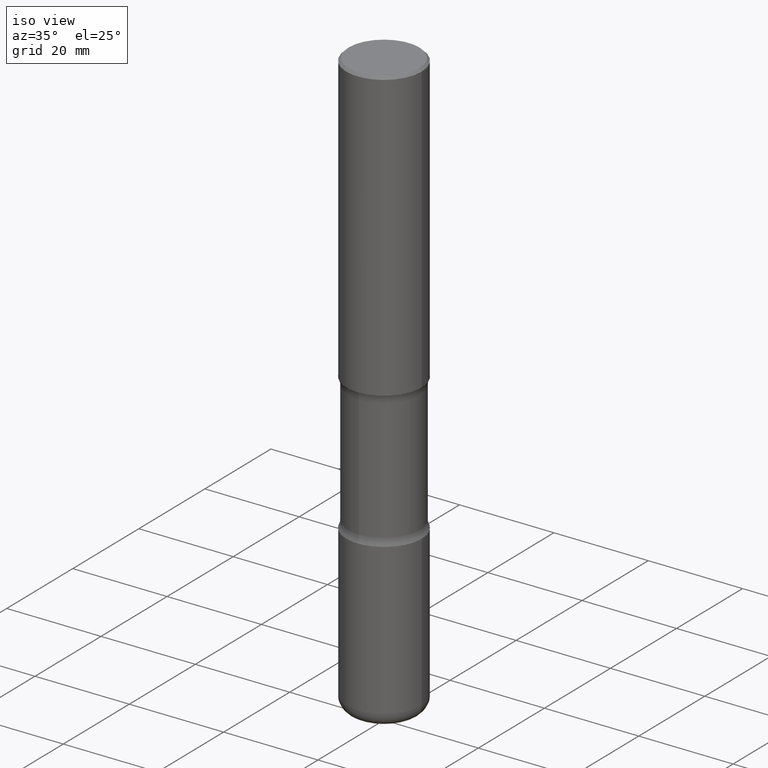
[diagram: clean part render]
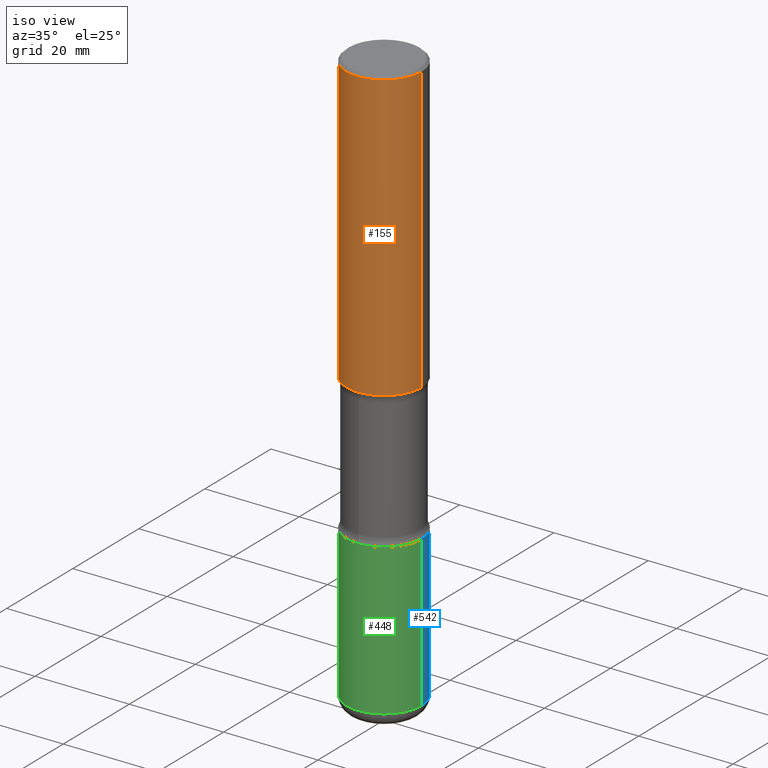
[diagram: same view with three faces highlighted in distinct colors, each labeled with its STEP entity id]
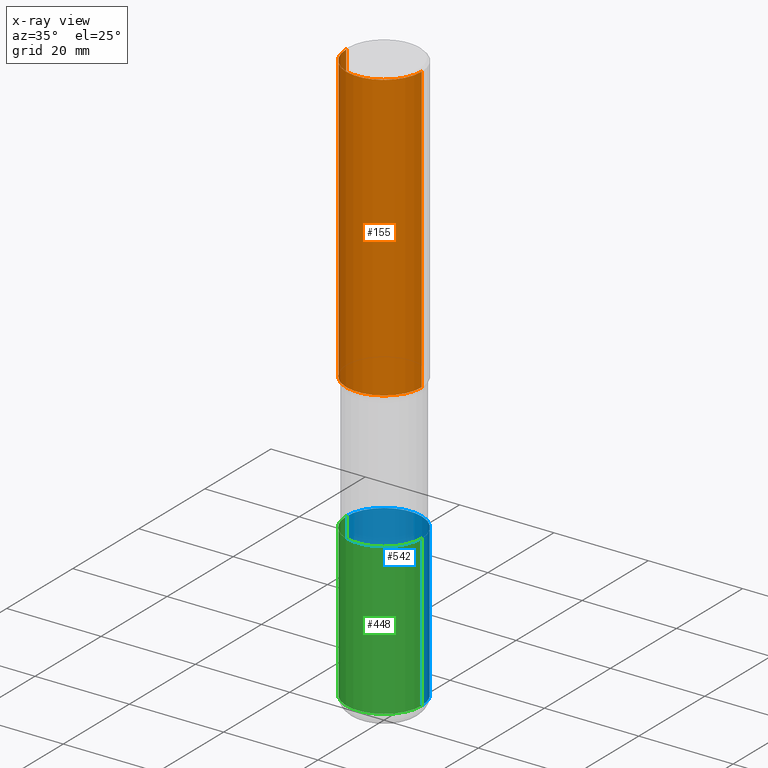
[diagram: x-ray of the same camera — body ghosted, the three highlighted faces saturated]
A machine part, iso view with three faces highlighted in distinct colors.
The next image is the same camera in x-ray (body ghosted, the three faces saturated) — at least one of them is partly hidden behind the body in this view.
Their STEP definitions:

[orange] entity #155 — the highlighted cylindrical surface (partial cylindrical patch) has radius 7.9997 mm, axis along (-0, 0, 1).
#7 = AXIS2_PLACEMENT_3D ( 'NONE', #23, #197, #163 ) ;
#19 = CARTESIAN_POINT ( 'NONE',  ( -0.3149499999999998967, 2.129454468560425784E-15, -0.02000000000000006981 ) ) ;
#23 = CARTESIAN_POINT ( 'NONE',  ( 5.873037884934225470E-29, -8.385141583365698841E-15, -2.401600000000000623 ) ) ;
#43 = VERTEX_POINT ( 'NONE', #19 ) ;
#45 = CIRCLE ( 'NONE', #7, 0.3149500000000001743 ) ;
#48 = DIRECTION ( 'NONE',  ( 1.000000000000000000, -6.982962677686265922E-15, 0.000000000000000000 ) ) ;
#80 = DIRECTION ( 'NONE',  ( -2.445468806185136597E-29, 3.491481338843145583E-15, 1.000000000000000000 ) ) ;
#87 = VERTEX_POINT ( 'NONE', #451 ) ;
#147 = VERTEX_POINT ( 'NONE', #472 ) ;
#149 = EDGE_CURVE ( 'NONE', #87, #147, #45, .T. ) ;
#155 = ADVANCED_FACE ( 'NONE', ( #378 ), #375, .T. ) ;
#163 = DIRECTION ( 'NONE',  ( 1.000000000000000000, -6.982962677686265922E-15, 0.000000000000000000 ) ) ;
#170 = DIRECTION ( 'NONE',  ( -2.445468806185136597E-29, 3.491481338843145583E-15, 1.000000000000000000 ) ) ;
#184 = EDGE_CURVE ( 'NONE', #87, #43, #337, .T. ) ;
#197 = DIRECTION ( 'NONE',  ( -2.445468806185136597E-29, 3.491481338843145583E-15, 1.000000000000000000 ) ) ;
#255 = ORIENTED_EDGE ( 'NONE', *, *, #269, .T. ) ;
#260 = CARTESIAN_POINT ( 'NONE',  ( 0.3149500000000000077, -2.199284095337289871E-15, 1.535751875536930130E-29 ) ) ;
#269 = EDGE_CURVE ( 'NONE', #147, #453, #304, .T. ) ;
#277 = ORIENTED_EDGE ( 'NONE', *, *, #184, .F. ) ;
#304 = LINE ( 'NONE', #260, #493 ) ;
#337 = LINE ( 'NONE', #507, #345 ) ;
#345 = VECTOR ( 'NONE', #422, 39.37007874015748143 ) ;
#375 = CYLINDRICAL_SURFACE ( 'NONE', #438, 0.3149500000000000077 ) ;
#378 = FACE_OUTER_BOUND ( 'NONE', #458, .T. ) ;
#383 = CARTESIAN_POINT ( 'NONE',  ( 0.000000000000000000, 0.000000000000000000, 0.000000000000000000 ) ) ;
#396 = EDGE_CURVE ( 'NONE', #43, #453, #500, .T. ) ;
#413 = ORIENTED_EDGE ( 'NONE', *, *, #396, .F. ) ;
#422 = DIRECTION ( 'NONE',  ( -2.445468806185136877E-29, 3.491481338843145188E-15, 1.000000000000000000 ) ) ;
#438 = AXIS2_PLACEMENT_3D ( 'NONE', #383, #80, #543 ) ;
#451 = CARTESIAN_POINT ( 'NONE',  ( -0.3149500000000001743, -1.989631258794842718E-15, -2.401600000000000623 ) ) ;
#453 = VERTEX_POINT ( 'NONE', #537 ) ;
#455 = AXIS2_PLACEMENT_3D ( 'NONE', #490, #170, #48 ) ;
#458 = EDGE_LOOP ( 'NONE', ( #277, #514, #255, #413 ) ) ;
#472 = CARTESIAN_POINT ( 'NONE',  ( 0.3149500000000001743, -1.058442567870299029E-14, -2.401600000000000623 ) ) ;
#490 = CARTESIAN_POINT ( 'NONE',  ( 4.890937612370289799E-31, -6.982962677686315028E-17, -0.02000000000000006981 ) ) ;
#493 = VECTOR ( 'NONE', #527, 39.37007874015748143 ) ;
#500 = CIRCLE ( 'NONE', #455, 0.3149499999999998967 ) ;
#507 = CARTESIAN_POINT ( 'NONE',  ( -0.3149500000000000077, 2.237854346276435590E-15, -1.549218606675782676E-29 ) ) ;
#514 = ORIENTED_EDGE ( 'NONE', *, *, #149, .T. ) ;
#527 = DIRECTION ( 'NONE',  ( -2.445468806185136877E-29, 3.491481338843145188E-15, 1.000000000000000000 ) ) ;
#537 = CARTESIAN_POINT ( 'NONE',  ( 0.3149499999999998967, -2.230543471175006266E-15, -0.02000000000000006981 ) ) ;
#543 = DIRECTION ( 'NONE',  ( 1.000000000000000000, -6.982962677686266711E-15, 4.876176775795936353E-29 ) ) ;

[blue] entity #542 — the highlighted cylindrical surface (partial cylindrical patch) has radius 7.9997 mm, axis along (-0, 0, 1).
#27 = VERTEX_POINT ( 'NONE', #153 ) ;
#28 = DIRECTION ( 'NONE',  ( -2.445468806185136877E-29, 3.491481338843145188E-15, 1.000000000000000000 ) ) ;
#35 = AXIS2_PLACEMENT_3D ( 'NONE', #57, #410, #189 ) ;
#47 = DIRECTION ( 'NONE',  ( 1.000000000000000000, -6.982962677686263555E-15, 0.000000000000000000 ) ) ;
#50 = LINE ( 'NONE', #216, #193 ) ;
#57 = CARTESIAN_POINT ( 'NONE',  ( 1.174607576986844421E-28, -1.677028316673139137E-14, -4.803199999999998582 ) ) ;
#61 = DIRECTION ( 'NONE',  ( -2.445468806185136597E-29, 3.491481338843145583E-15, 1.000000000000000000 ) ) ;
#72 = DIRECTION ( 'NONE',  ( 1.000000000000000000, -6.982962677686267499E-15, 4.876176775795936353E-29 ) ) ;
#77 = CARTESIAN_POINT ( 'NONE',  ( 0.3149500000000003963, -2.199284095337292632E-15, 1.535751875536932092E-29 ) ) ;
#79 = ORIENTED_EDGE ( 'NONE', *, *, #371, .F. ) ;
#100 = CARTESIAN_POINT ( 'NONE',  ( -0.3149500000000002853, -1.233297015105071824E-14, -3.543300000000000782 ) ) ;
#105 = FACE_OUTER_BOUND ( 'NONE', #300, .T. ) ;
#111 = VERTEX_POINT ( 'NONE', #381 ) ;
#114 = LINE ( 'NONE', #77, #539 ) ;
#137 = DIRECTION ( 'NONE',  ( -2.445468806185136877E-29, 3.491481338843145188E-15, 1.000000000000000000 ) ) ;
#153 = CARTESIAN_POINT ( 'NONE',  ( 0.3149500000000002853, -1.457064992326021168E-14, -3.543300000000000782 ) ) ;
#189 = DIRECTION ( 'NONE',  ( 1.000000000000000000, -6.982962677686265133E-15, 0.000000000000000000 ) ) ;
#193 = VECTOR ( 'NONE', #137, 39.37007874015748143 ) ;
#212 = ORIENTED_EDGE ( 'NONE', *, *, #237, .T. ) ;
#216 = CARTESIAN_POINT ( 'NONE',  ( -0.3149500000000003963, 2.237854346276438351E-15, -1.549218606675784638E-29 ) ) ;
#237 = EDGE_CURVE ( 'NONE', #111, #463, #50, .T. ) ;
#257 = CARTESIAN_POINT ( 'NONE',  ( 8.665029620955796311E-29, -1.237136582792292023E-14, -3.543300000000000782 ) ) ;
#274 = CYLINDRICAL_SURFACE ( 'NONE', #403, 0.3149500000000003963 ) ;
#300 = EDGE_LOOP ( 'NONE', ( #341, #212, #79, #508 ) ) ;
#341 = ORIENTED_EDGE ( 'NONE', *, *, #468, .T. ) ;
#371 = EDGE_CURVE ( 'NONE', #27, #463, #524, .T. ) ;
#381 = CARTESIAN_POINT ( 'NONE',  ( -0.3149500000000005073, -1.453242882045495223E-14, -4.803199999999998582 ) ) ;
#391 = AXIS2_PLACEMENT_3D ( 'NONE', #257, #432, #47 ) ;
#403 = AXIS2_PLACEMENT_3D ( 'NONE', #450, #61, #72 ) ;
#410 = DIRECTION ( 'NONE',  ( -2.445468806185136597E-29, 3.491481338843145583E-15, 1.000000000000000000 ) ) ;
#427 = CARTESIAN_POINT ( 'NONE',  ( 0.3149500000000005073, -1.896956726206868282E-14, -4.803199999999998582 ) ) ;
#432 = DIRECTION ( 'NONE',  ( -2.445468806185136597E-29, 3.491481338843145583E-15, 1.000000000000000000 ) ) ;
#447 = CIRCLE ( 'NONE', #35, 0.3149500000000005073 ) ;
#450 = CARTESIAN_POINT ( 'NONE',  ( 0.000000000000000000, 0.000000000000000000, 0.000000000000000000 ) ) ;
#463 = VERTEX_POINT ( 'NONE', #100 ) ;
#468 = EDGE_CURVE ( 'NONE', #547, #111, #447, .T. ) ;
#508 = ORIENTED_EDGE ( 'NONE', *, *, #551, .F. ) ;
#524 = CIRCLE ( 'NONE', #391, 0.3149500000000002853 ) ;
#539 = VECTOR ( 'NONE', #28, 39.37007874015748143 ) ;
#542 = ADVANCED_FACE ( 'NONE', ( #105 ), #274, .T. ) ;
#547 = VERTEX_POINT ( 'NONE', #427 ) ;
#551 = EDGE_CURVE ( 'NONE', #547, #27, #114, .T. ) ;

[green] entity #448 — the highlighted cylindrical surface (partial cylindrical patch) has radius 7.9997 mm, axis along (-0, 0, 1).
#18 = DIRECTION ( 'NONE',  ( 1.000000000000000000, -6.982962677686267499E-15, 4.876176775795936353E-29 ) ) ;
#27 = VERTEX_POINT ( 'NONE', #153 ) ;
#28 = DIRECTION ( 'NONE',  ( -2.445468806185136877E-29, 3.491481338843145188E-15, 1.000000000000000000 ) ) ;
#50 = LINE ( 'NONE', #216, #193 ) ;
#69 = EDGE_CURVE ( 'NONE', #463, #27, #546, .T. ) ;
#77 = CARTESIAN_POINT ( 'NONE',  ( 0.3149500000000003963, -2.199284095337292632E-15, 1.535751875536932092E-29 ) ) ;
#100 = CARTESIAN_POINT ( 'NONE',  ( -0.3149500000000002853, -1.233297015105071824E-14, -3.543300000000000782 ) ) ;
#111 = VERTEX_POINT ( 'NONE', #381 ) ;
#114 = LINE ( 'NONE', #77, #539 ) ;
#137 = DIRECTION ( 'NONE',  ( -2.445468806185136877E-29, 3.491481338843145188E-15, 1.000000000000000000 ) ) ;
#146 = DIRECTION ( 'NONE',  ( -2.445468806185136597E-29, 3.491481338843145583E-15, 1.000000000000000000 ) ) ;
#153 = CARTESIAN_POINT ( 'NONE',  ( 0.3149500000000002853, -1.457064992326021168E-14, -3.543300000000000782 ) ) ;
#181 = AXIS2_PLACEMENT_3D ( 'NONE', #320, #466, #520 ) ;
#193 = VECTOR ( 'NONE', #137, 39.37007874015748143 ) ;
#209 = CYLINDRICAL_SURFACE ( 'NONE', #281, 0.3149500000000003963 ) ;
#216 = CARTESIAN_POINT ( 'NONE',  ( -0.3149500000000003963, 2.237854346276438351E-15, -1.549218606675784638E-29 ) ) ;
#237 = EDGE_CURVE ( 'NONE', #111, #463, #50, .T. ) ;
#258 = AXIS2_PLACEMENT_3D ( 'NONE', #528, #146, #315 ) ;
#261 = DIRECTION ( 'NONE',  ( -2.445468806185136597E-29, 3.491481338843145583E-15, 1.000000000000000000 ) ) ;
#281 = AXIS2_PLACEMENT_3D ( 'NONE', #296, #261, #18 ) ;
#291 = ORIENTED_EDGE ( 'NONE', *, *, #69, .F. ) ;
#296 = CARTESIAN_POINT ( 'NONE',  ( 0.000000000000000000, 0.000000000000000000, 0.000000000000000000 ) ) ;
#315 = DIRECTION ( 'NONE',  ( 1.000000000000000000, -6.982962677686263555E-15, 0.000000000000000000 ) ) ;
#320 = CARTESIAN_POINT ( 'NONE',  ( 1.174607576986844421E-28, -1.677028316673139137E-14, -4.803199999999998582 ) ) ;
#333 = ORIENTED_EDGE ( 'NONE', *, *, #377, .T. ) ;
#377 = EDGE_CURVE ( 'NONE', #111, #547, #486, .T. ) ;
#381 = CARTESIAN_POINT ( 'NONE',  ( -0.3149500000000005073, -1.453242882045495223E-14, -4.803199999999998582 ) ) ;
#424 = ORIENTED_EDGE ( 'NONE', *, *, #551, .T. ) ;
#427 = CARTESIAN_POINT ( 'NONE',  ( 0.3149500000000005073, -1.896956726206868282E-14, -4.803199999999998582 ) ) ;
#428 = EDGE_LOOP ( 'NONE', ( #560, #333, #424, #291 ) ) ;
#448 = ADVANCED_FACE ( 'NONE', ( #506 ), #209, .T. ) ;
#463 = VERTEX_POINT ( 'NONE', #100 ) ;
#466 = DIRECTION ( 'NONE',  ( -2.445468806185136597E-29, 3.491481338843145583E-15, 1.000000000000000000 ) ) ;
#486 = CIRCLE ( 'NONE', #181, 0.3149500000000005073 ) ;
#506 = FACE_OUTER_BOUND ( 'NONE', #428, .T. ) ;
#520 = DIRECTION ( 'NONE',  ( 1.000000000000000000, -6.982962677686265133E-15, 0.000000000000000000 ) ) ;
#528 = CARTESIAN_POINT ( 'NONE',  ( 8.665029620955796311E-29, -1.237136582792292023E-14, -3.543300000000000782 ) ) ;
#539 = VECTOR ( 'NONE', #28, 39.37007874015748143 ) ;
#546 = CIRCLE ( 'NONE', #258, 0.3149500000000002853 ) ;
#547 = VERTEX_POINT ( 'NONE', #427 ) ;
#551 = EDGE_CURVE ( 'NONE', #547, #27, #114, .T. ) ;
#560 = ORIENTED_EDGE ( 'NONE', *, *, #237, .F. ) ;